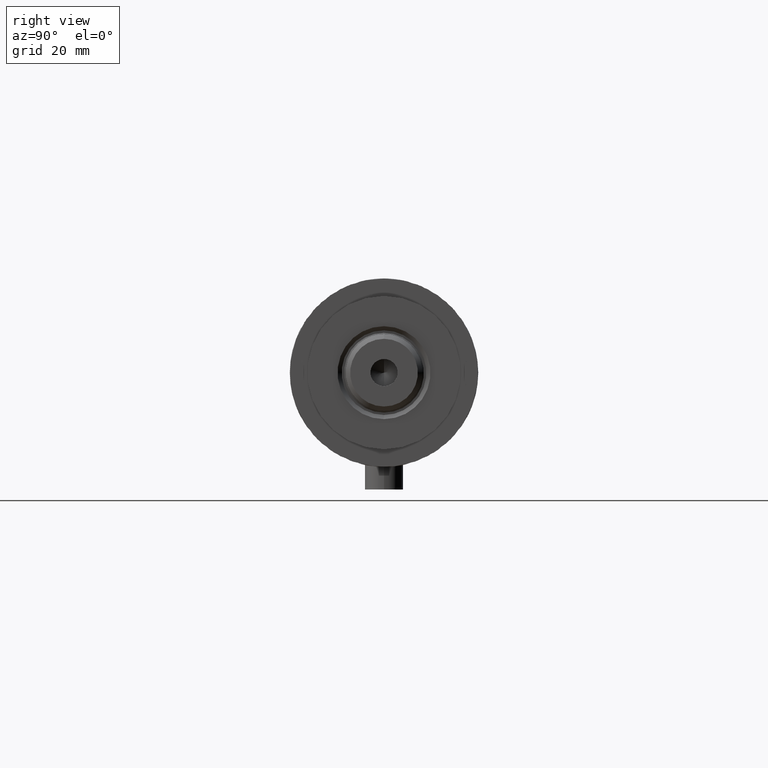
[diagram: clean part render]
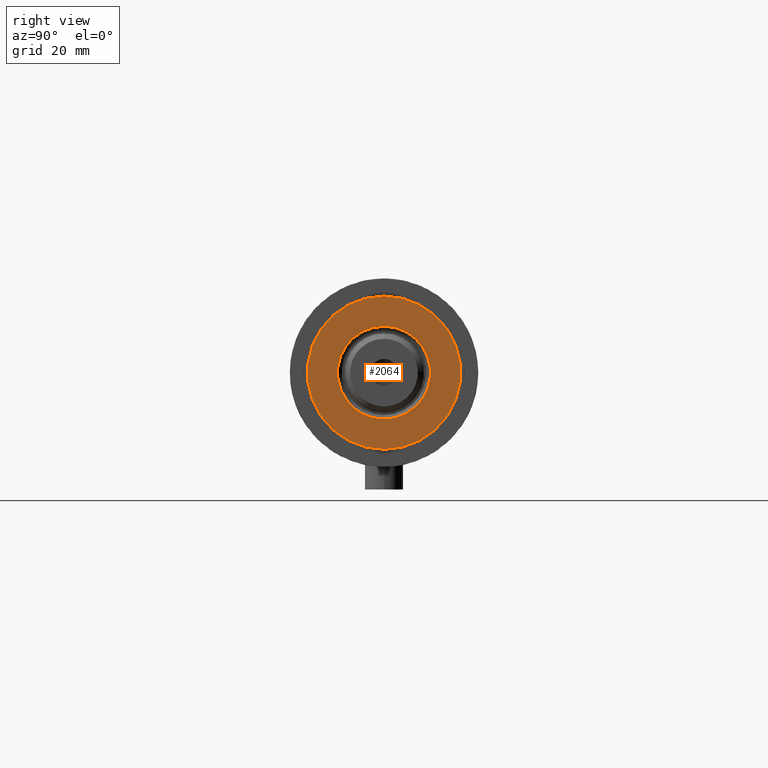
[diagram: same view with one face highlighted and labeled with its STEP entity id]
A machine part, right view. The second image highlights one B-rep face of the part: STEP entity #2064.
In plain terms, the highlighted planar face has unit normal (1, 0, -0).
Its self-contained STEP definition (entity closure, byte-faithful):
#64 = ORIENTED_EDGE ( 'NONE', *, *, #3801, .T. ) ;
#86 = CARTESIAN_POINT ( 'NONE',  ( 0.000000000000000000, 0.000000000000000000, 41.00000000000000000 ) ) ;
#200 = CARTESIAN_POINT ( 'NONE',  ( -14.54999999999997939, 1.781861092759396721E-15, 41.00000000000000000 ) ) ;
#244 = AXIS2_PLACEMENT_3D ( 'NONE', #3223, #3915, #561 ) ;
#552 = AXIS2_PLACEMENT_3D ( 'NONE', #2967, #2565, #1556 ) ;
#561 = DIRECTION ( 'NONE',  ( 1.000000000000000000, 0.000000000000000000, 0.000000000000000000 ) ) ;
#566 = DIRECTION ( 'NONE',  ( 0.000000000000000000, 0.000000000000000000, 1.000000000000000000 ) ) ;
#740 = DIRECTION ( 'NONE',  ( -0.000000000000000000, -0.000000000000000000, -1.000000000000000000 ) ) ;
#884 = DIRECTION ( 'NONE',  ( 1.000000000000000000, 0.000000000000000000, 0.000000000000000000 ) ) ;
#1045 = ORIENTED_EDGE ( 'NONE', *, *, #1222, .T. ) ;
#1108 = DIRECTION ( 'NONE',  ( 1.000000000000000000, 0.000000000000000000, 0.000000000000000000 ) ) ;
#1222 = EDGE_CURVE ( 'NONE', #4362, #1957, #2630, .T. ) ;
#1254 = FACE_BOUND ( 'NONE', #4432, .T. ) ;
#1289 = ORIENTED_EDGE ( 'NONE', *, *, #2456, .T. ) ;
#1556 = DIRECTION ( 'NONE',  ( 1.000000000000000000, 0.000000000000000000, -0.000000000000000000 ) ) ;
#1582 = FACE_OUTER_BOUND ( 'NONE', #4412, .T. ) ;
#1921 = VERTEX_POINT ( 'NONE', #2517 ) ;
#1957 = VERTEX_POINT ( 'NONE', #200 ) ;
#2011 = EDGE_CURVE ( 'NONE', #1921, #3548, #2420, .T. ) ;
#2064 = ADVANCED_FACE ( 'NONE', ( #1254, #1582 ), #2588, .T. ) ;
#2420 = CIRCLE ( 'NONE', #3359, 24.00000000000000355 ) ;
#2456 = EDGE_CURVE ( 'NONE', #3548, #1921, #4443, .T. ) ;
#2517 = CARTESIAN_POINT ( 'NONE',  ( 24.00000000000000355, 2.939152317953648289E-15, 41.00000000000000000 ) ) ;
#2565 = DIRECTION ( 'NONE',  ( 0.000000000000000000, 0.000000000000000000, 1.000000000000000000 ) ) ;
#2588 = PLANE ( 'NONE',  #552 ) ;
#2600 = CARTESIAN_POINT ( 'NONE',  ( -24.00000000000000355, 0.000000000000000000, 41.00000000000000000 ) ) ;
#2630 = CIRCLE ( 'NONE', #3065, 14.54999999999997939 ) ;
#2832 = DIRECTION ( 'NONE',  ( 1.000000000000000000, 0.000000000000000000, 0.000000000000000000 ) ) ;
#2927 = CIRCLE ( 'NONE', #3205, 14.54999999999997939 ) ;
#2967 = CARTESIAN_POINT ( 'NONE',  ( 0.000000000000000000, 0.000000000000000000, 41.00000000000000000 ) ) ;
#2977 = ORIENTED_EDGE ( 'NONE', *, *, #2011, .T. ) ;
#3065 = AXIS2_PLACEMENT_3D ( 'NONE', #3081, #740, #1108 ) ;
#3081 = CARTESIAN_POINT ( 'NONE',  ( 0.000000000000000000, 0.000000000000000000, 41.00000000000000000 ) ) ;
#3205 = AXIS2_PLACEMENT_3D ( 'NONE', #86, #3807, #2832 ) ;
#3223 = CARTESIAN_POINT ( 'NONE',  ( 0.000000000000000000, 0.000000000000000000, 41.00000000000000000 ) ) ;
#3254 = CARTESIAN_POINT ( 'NONE',  ( 14.54999999999997939, 0.000000000000000000, 41.00000000000000000 ) ) ;
#3359 = AXIS2_PLACEMENT_3D ( 'NONE', #3608, #566, #884 ) ;
#3548 = VERTEX_POINT ( 'NONE', #2600 ) ;
#3608 = CARTESIAN_POINT ( 'NONE',  ( 0.000000000000000000, 0.000000000000000000, 41.00000000000000000 ) ) ;
#3801 = EDGE_CURVE ( 'NONE', #1957, #4362, #2927, .T. ) ;
#3807 = DIRECTION ( 'NONE',  ( -0.000000000000000000, -0.000000000000000000, -1.000000000000000000 ) ) ;
#3915 = DIRECTION ( 'NONE',  ( 0.000000000000000000, 0.000000000000000000, 1.000000000000000000 ) ) ;
#4362 = VERTEX_POINT ( 'NONE', #3254 ) ;
#4412 = EDGE_LOOP ( 'NONE', ( #1289, #2977 ) ) ;
#4432 = EDGE_LOOP ( 'NONE', ( #1045, #64 ) ) ;
#4443 = CIRCLE ( 'NONE', #244, 24.00000000000000355 ) ;